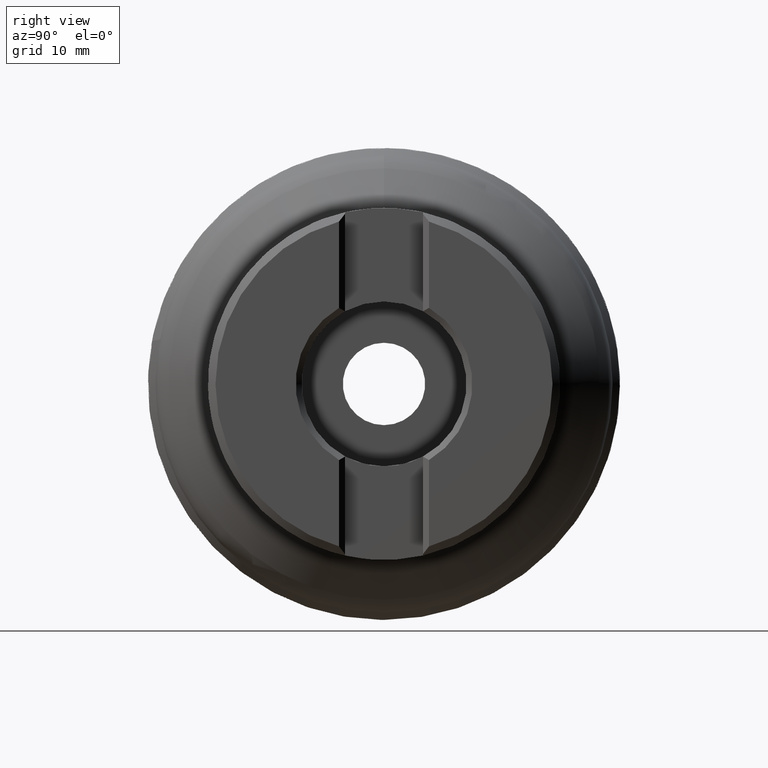
[diagram: clean part render]
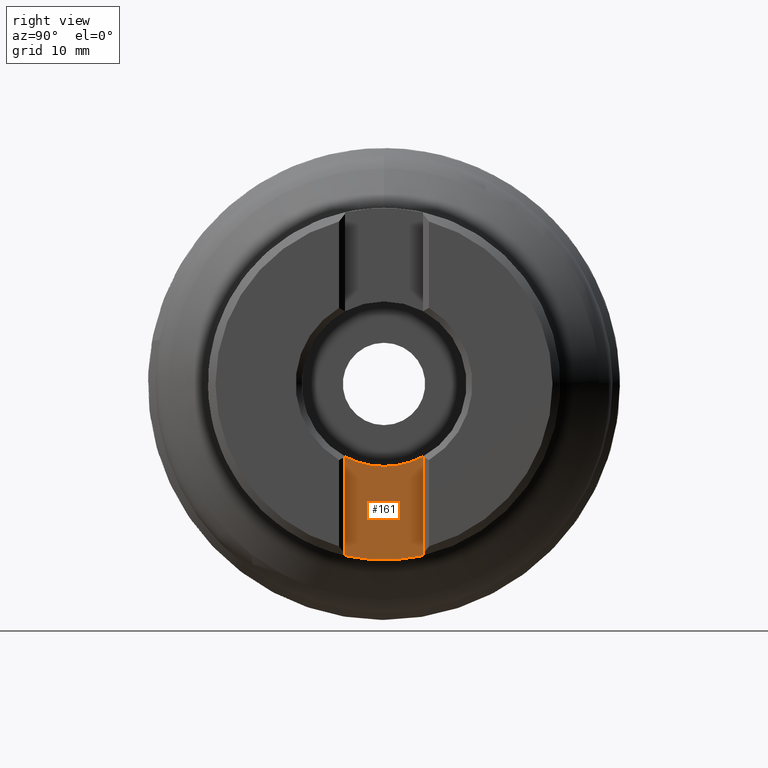
[diagram: same view with one face highlighted and labeled with its STEP entity id]
A machine part, right view. The second image highlights one B-rep face of the part: STEP entity #161.
In plain terms, the highlighted planar face has unit normal (-1, 0, 0).
Its self-contained STEP definition (entity closure, byte-faithful):
#53=PLANE('',#921);
#67=FACE_OUTER_BOUND('',#437,.T.);
#161=ADVANCED_FACE('',(#67),#53,.F.);
#236=LINE('',#1437,#264);
#238=LINE('',#1440,#266);
#264=VECTOR('',#1139,1.);
#266=VECTOR('',#1143,1.);
#437=EDGE_LOOP('',(#575,#576,#577,#578));
#575=ORIENTED_EDGE('',*,*,#735,.F.);
#576=ORIENTED_EDGE('',*,*,#771,.T.);
#577=ORIENTED_EDGE('',*,*,#752,.T.);
#578=ORIENTED_EDGE('',*,*,#769,.F.);
#663=VERTEX_POINT('',#1341);
#664=VERTEX_POINT('',#1343);
#680=VERTEX_POINT('',#1385);
#681=VERTEX_POINT('',#1387);
#735=EDGE_CURVE('',#663,#664,#813,.T.);
#752=EDGE_CURVE('',#681,#680,#827,.T.);
#769=EDGE_CURVE('',#664,#680,#236,.T.);
#771=EDGE_CURVE('',#663,#681,#238,.T.);
#813=CIRCLE('',#876,23.5);
#827=CIRCLE('',#900,11.);
#876=AXIS2_PLACEMENT_3D('',#1342,#1047,#1048);
#900=AXIS2_PLACEMENT_3D('',#1386,#1098,#1099);
#921=AXIS2_PLACEMENT_3D('',#1442,#1146,#1147);
#1047=DIRECTION('',(-1.,0.,0.));
#1048=DIRECTION('',(0.,0.,1.));
#1098=DIRECTION('',(-1.,0.,0.));
#1099=DIRECTION('',(0.,0.,1.));
#1139=DIRECTION('',(0.,0.,1.));
#1143=DIRECTION('',(0.,0.,1.));
#1146=DIRECTION('',(-1.,0.,0.));
#1147=DIRECTION('',(0.,0.,1.));
#1341=CARTESIAN_POINT('',(33.7,5.2,-22.9174605923082));
#1342=CARTESIAN_POINT('',(33.7,0.,0.));
#1343=CARTESIAN_POINT('',(33.7,-5.2,-22.9174605923082));
#1385=CARTESIAN_POINT('',(33.7,-5.2,-9.69329665284211));
#1386=CARTESIAN_POINT('',(33.7,0.,0.));
#1387=CARTESIAN_POINT('',(33.7,5.2,-9.69329665284211));
#1437=CARTESIAN_POINT('',(33.7,-5.2,-249.));
#1440=CARTESIAN_POINT('',(33.7,5.2,-250.));
#1442=CARTESIAN_POINT('',(33.7,-4.2,-249.));